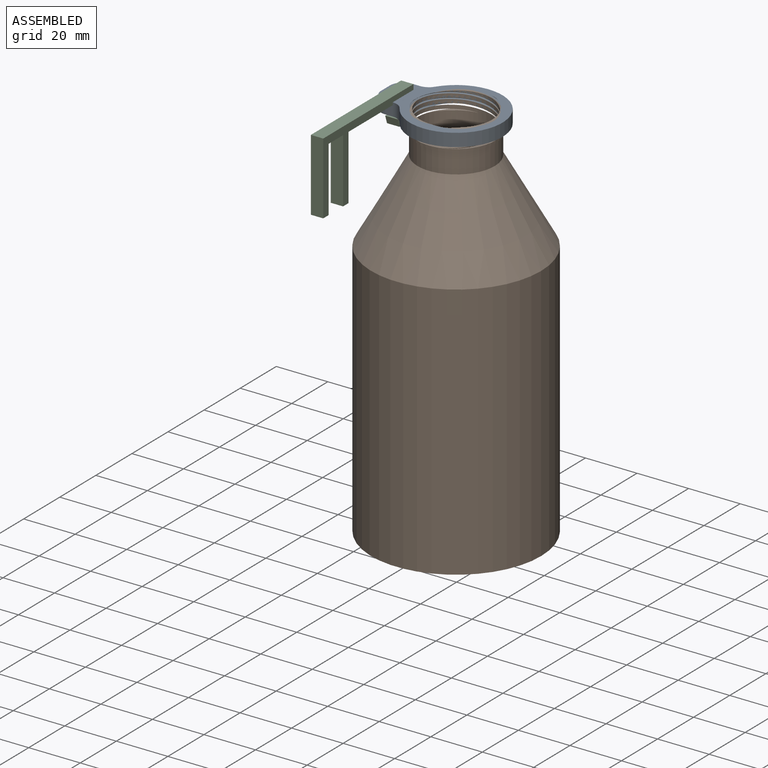
[diagram: assembled view]
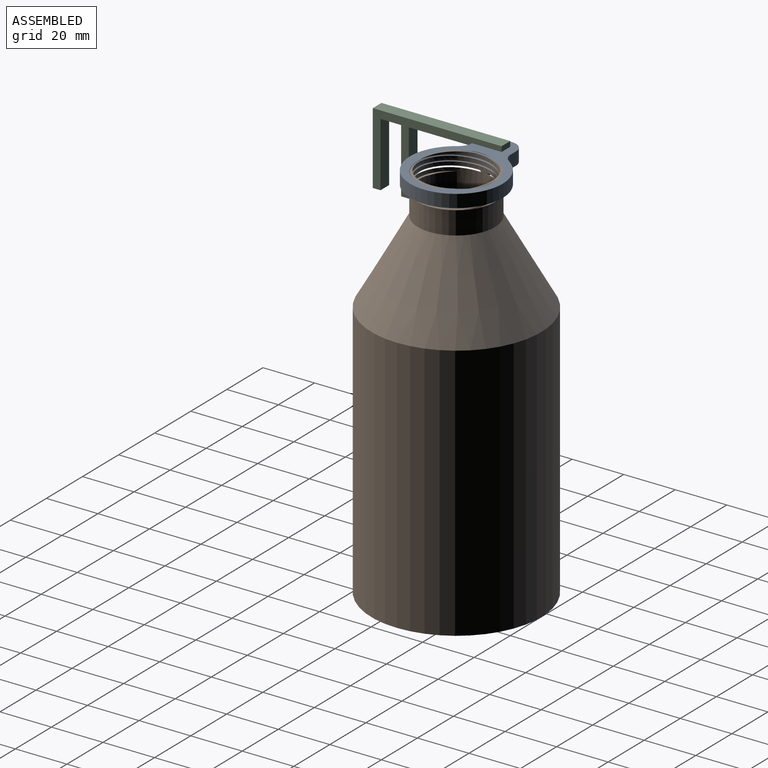
[diagram: assembled view, second angle]
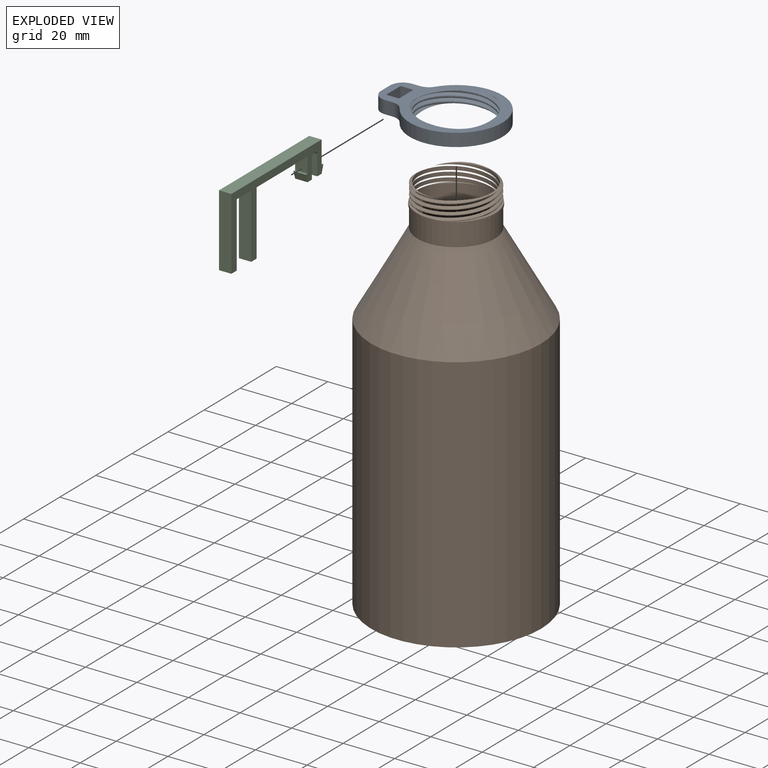
[diagram: exploded view]
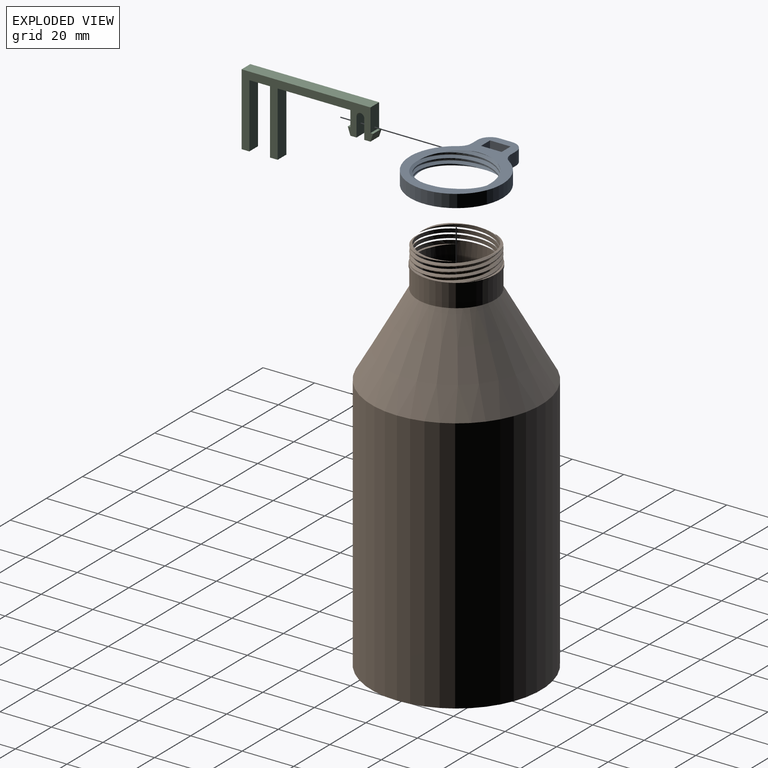
[diagram: exploded view, second angle]
ASSEMBLY  parts=3 mates=2
PART A: 26 faces, bbox 45.7x36.3x7.9 mm
  f0: cylinder r=18mm len=36mm, axis (0,0,-1), area 462.1mm2, adj f1,f2,f10,f13
  f1: plane 45.68x36.32mm, normal (0,0,1), area 459.1mm2, adj f0,f3,f4,f5,f6,f7,f8,f9
  f2: plane 45.68x36.32mm, normal (0,0,-1), area 459.1mm2, adj f0,f3,f4,f5,f6,f7,f8,f9
  f3: plane 5x5mm, normal (0,-1,0), area 25mm2, adj f1,f2,f5,f6
  f4: plane 5x3.06mm, normal (0,1,0), area 15.3mm2, adj f1,f2,f10,f11
  f5: plane 8x5mm, normal (-1,0,0), area 40mm2, adj f1,f2,f3,f7
  f6: plane 8x5mm, normal (1,0,0), area 40mm2, adj f1,f2,f3,f7
  f7: plane 5x5mm, normal (0,1,0), area 25mm2, adj f1,f2,f5,f6
  f8: plane 5x5mm, normal (-1,0,0), area 25mm2, adj f1,f2,f11,f12
  f9: plane 5x3.06mm, normal (0,-1,0), area 15.3mm2, adj f1,f2,f12,f13
  f10: cylinder r=5mm len=5mm, axis (0,0,-1), area 24.9mm2, adj f0,f1,f2,f4
  f11: cylinder r=5mm len=5mm, axis (0,0,-1), area 39.3mm2, adj f1,f2,f4,f8
  f12: cylinder r=5mm len=5mm, axis (0,0,1), area 39.3mm2, adj f1,f2,f8,f9
  f13: cylinder r=5mm len=5mm, axis (0,0,-1), area 24.9mm2, adj f0,f1,f2,f9
  f14: bspline ~34.83x30.17mm, area 95.3mm2, adj f1,f2,f16,f23
  f15: bspline ~34.83x30.17mm, area 95.3mm2, adj f1,f2,f16,f24
  f16: bspline ~35.04x30.35mm, area 23mm2, adj f1,f2,f14,f15
  f17: bspline ~34.83x30.17mm, area 95.3mm2, adj f1,f2,f19,f24
  f18: bspline ~34.83x30.17mm, area 95.3mm2, adj f1,f2,f19,f25
  f19: bspline ~35.04x30.35mm, area 23mm2, adj f1,f2,f17,f18
  f20: bspline ~34.83x30.17mm, area 95.3mm2, adj f1,f2,f22,f25
  f21: bspline ~34.83x30.17mm, area 95.3mm2, adj f1,f2,f22,f23
  f22: bspline ~35.04x30.35mm, area 23mm2, adj f1,f2,f20,f21
  f23: cylinder r=14mm len=28mm, axis (0,0,1), area 36.7mm2, adj f1,f2,f14,f21
  f24: cylinder r=14mm len=28mm, axis (0,0,1), area 36.7mm2, adj f1,f2,f15,f17
  f25: cylinder r=14mm len=28mm, axis (0,0,1), area 36.7mm2, adj f1,f2,f18,f20
PART B: 29 faces, bbox 66.2x66.2x149.2 mm
  f0: cylinder r=15mm len=30mm, axis (0,0,1), area 27.5mm2, adj f4,f14,f24,f27
  f1: cylinder r=15mm len=30mm, axis (0,0,1), area 27.5mm2, adj f3,f14,f25,f28
  f2: cylinder r=15mm len=30mm, axis (0,0,1), area 27.5mm2, adj f5,f14,f23,f26
  f3: plane 18.7x6.03mm, normal (0,0,1), area 12.5mm2, adj f1,f8,f9,f25,f28
  f4: plane 17.41x8.82mm, normal (0,0,1), area 12.5mm2, adj f0,f11,f24,f27
  f5: plane 15.03x11.79mm, normal (0,0,1), area 12.5mm2, adj f2,f10,f23,f26
  f6: plane 64x64mm, normal (0,0,-1), area 29.6mm2, adj f18,f19
  f7: cylinder r=14mm len=28mm, axis (0,0,1), area 983.9mm2, adj f8,f10,f11,f14,f16,f23,f24,f25
  f8: cylinder r=14mm len=28mm, axis (0,0,1), area 118.2mm2, adj f3,f7,f9,f25,f28
  f9: cylinder r=14mm len=7.92mm, axis (0,0,1), area 2.4mm2, adj f3,f8,f28
  f10: cylinder r=14mm len=28mm, axis (0,0,1), area 79.5mm2, adj f5,f7,f23,f26
  f11: cylinder r=14mm len=26.63mm, axis (0,0,1), area 38.5mm2, adj f4,f7,f24,f27
  f12: cylinder r=15.25mm len=30.5mm, axis (0,0,1), area 95.8mm2, adj f13,f14
  f13: plane 30.5x30.5mm, normal (0,0,-1), area 23.8mm2, adj f12,f15
  f14: plane 30.69x30.69mm, normal (0,0,1), area 77.3mm2, adj f0,f1,f2,f7,f12,f23,f24,f25
  f15: cylinder r=15mm len=30mm, axis (0,0,1), area 754mm2, adj f13,f17
  f16: plane 28x28mm, normal (0,0,1), area 12.9mm2, adj f7,f18
  f17: cone r=15mm half-angle=29.4deg, axis (0,0,-1), area 5536.5mm2, adj f15,f20
  f18: cone r=31.85mm half-angle=29.4deg, axis (0,0,-1), area 5271.8mm2, adj f6,f16
  f19: cylinder r=32mm len=99mm, axis (0,0,1), area 19905.1mm2, adj f6,f21
  f20: cylinder r=33mm len=100mm, axis (0,0,1), area 20734.5mm2, adj f17,f22
  f21: plane 64x64mm, normal (0,0,1), area 3217mm2, adj f19
  f22: plane 66x66mm, normal (0,0,-1), area 3421.2mm2, adj f20
  f23: bspline ~34.64x30mm, area 122.9mm2, adj f2,f5,f7,f10,f14
  f24: bspline ~34.64x30mm, area 122.9mm2, adj f0,f4,f7,f11,f14
  f25: bspline ~34.64x30mm, area 122.9mm2, adj f1,f3,f7,f8,f14
  f26: bspline ~34.64x30mm, area 122.9mm2, adj f2,f5,f7,f10,f14
  f27: bspline ~34.64x30mm, area 122.9mm2, adj f0,f4,f7,f11,f14
  f28: bspline ~34.64x30mm, area 122.9mm2, adj f1,f3,f7,f8,f9,f14
PART C: 22 faces, bbox 4.8x51x28 mm
  f0: plane 8x4.8mm, normal (0,0,-1), area 38.4mm2, adj f13,f14,f19,f20
  f1: plane 6x4.8mm, normal (0,-1,0), area 28.8mm2, adj f4,f13,f14,f15
  f2: plane 9x4.8mm, normal (0,1,0), area 43.2mm2, adj f3,f12,f13,f14
  f3: plane 50x4.8mm, normal (0,0,1), area 240mm2, adj f2,f13,f14,f16
  f4: plane 4.8x1mm, normal (0,0,1), area 4.8mm2, adj f1,f5,f13,f14
  f5: plane 4.8x3mm, normal (0,-0.95,-0.32), area 15.2mm2, adj f4,f6,f13,f14
  f6: plane 4.8x2.4mm, normal (0,0,-1), area 11.5mm2, adj f5,f7,f13,f14
  f7: plane 7.5x4.8mm, normal (0,1,0), area 36mm2, adj f6,f8,f13,f14
  f8: cylinder r=1.5mm len=4.8mm, axis (-1,0,0), area 22.6mm2, adj f7,f9,f13,f14
  f9: plane 7.5x4.8mm, normal (0,-1,0), area 36mm2, adj f8,f10,f13,f14
  f10: plane 4.8x2.4mm, normal (0,0,-1), area 11.5mm2, adj f9,f11,f13,f14
  f11: plane 4.8x3mm, normal (0,0.95,-0.32), area 15.2mm2, adj f10,f12,f13,f14
  f12: plane 4.8x1mm, normal (0,0,1), area 4.8mm2, adj f2,f11,f13,f14
  f13: plane 51x28mm, normal (1,0,0), area 347.2mm2, adj f0,f1,f2,f3,f4,f5,f6,f7
  f14: plane 51x28mm, normal (-1,0,0), area 347.2mm2, adj f0,f1,f2,f3,f4,f5,f6,f7
  f15: plane 28.2x4.8mm, normal (0,0,-1), area 135.4mm2, adj f1,f13,f14,f17
  f16: plane 28x4.8mm, normal (0,-1,0), area 134.4mm2, adj f3,f13,f14,f21
  f17: plane 25x4.8mm, normal (0,1,0), area 120mm2, adj f13,f14,f15,f18
  f18: plane 4.8x3mm, normal (0,0,-1), area 14.4mm2, adj f13,f14,f17,f19
  f19: plane 25x4.8mm, normal (0,-1,0), area 120mm2, adj f0,f13,f14,f18
  f20: plane 25x4.8mm, normal (0,1,0), area 120mm2, adj f0,f13,f14,f21
  f21: plane 4.8x3mm, normal (0,0,-1), area 14.4mm2, adj f13,f14,f16,f20
PLACE A t=(72.52,-38.12,-41.62)mm
PLACE B t=(72.52,-38.12,-36.62)mm
PLACE C t=(72.72,-38.02,-43.42)mm
MATE fastened A.f5 <-> C.f13  axis (-1,0,0) through (53.16,-34.12,-39.12)mm
MATE fastened B.f0 <-> A.f0  axis (0,0,1) through (72.52,-38.12,-36.62)mm
